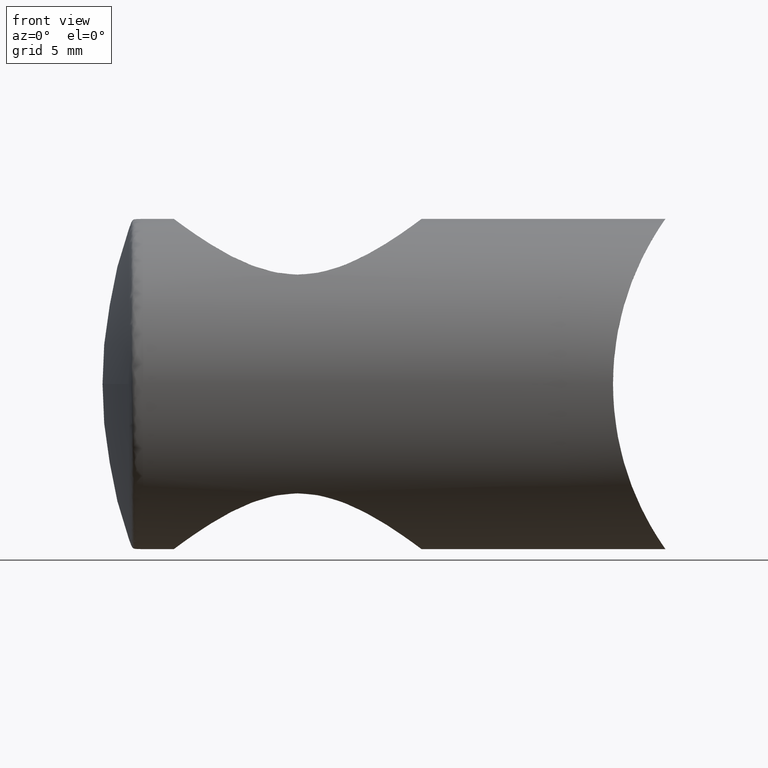
[diagram: clean part render]
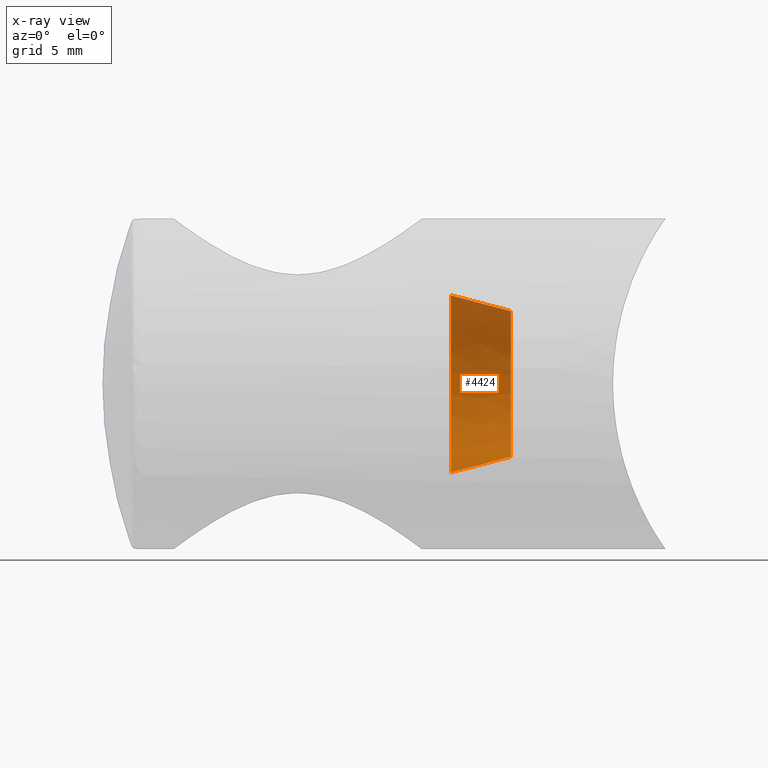
[diagram: x-ray — body ghosted, one internal face saturated and labeled with its STEP entity id]
A machine part, front view, then the same camera in x-ray: the body is ghosted and one INTERNAL B-rep face — a face not visible from any outside direction — is saturated and labeled: STEP entity #4424.
In plain terms, the highlighted conical surface has half-angle 14.708 deg.
Its self-contained STEP definition (entity closure, byte-faithful):
#190 = VERTEX_POINT ( 'NONE', #4262 ) ;
#282 = ORIENTED_EDGE ( 'NONE', *, *, #1530, .T. ) ;
#476 = CARTESIAN_POINT ( 'NONE',  ( -17.58848920863309600, 0.0000000000000000000, 0.0000000000000000000 ) ) ;
#775 = CIRCLE ( 'NONE', #3757, 5.899999999999997700 ) ;
#877 = DIRECTION ( 'NONE',  ( 1.000000000000000000, -0.0000000000000000000, -0.0000000000000000000 ) ) ;
#904 = LINE ( 'NONE', #4533, #4953 ) ;
#949 = ORIENTED_EDGE ( 'NONE', *, *, #2144, .F. ) ;
#975 = CIRCLE ( 'NONE', #4078, 4.849999999999997900 ) ;
#1266 = EDGE_LOOP ( 'NONE', ( #5252, #282, #2546, #949 ) ) ;
#1305 = DIRECTION ( 'NONE',  ( 0.0000000000000000000, 0.0000000000000000000, -1.000000000000000000 ) ) ;
#1338 = CARTESIAN_POINT ( 'NONE',  ( -13.58848920863309600, 5.939536975864660000E-016, -4.849999999999997900 ) ) ;
#1530 = EDGE_CURVE ( 'NONE', #3002, #4100, #4541, .T. ) ;
#1637 = EDGE_CURVE ( 'NONE', #4100, #4276, #775, .T. ) ;
#2144 = EDGE_CURVE ( 'NONE', #190, #4276, #904, .T. ) ;
#2269 = AXIS2_PLACEMENT_3D ( 'NONE', #2450, #5428, #4551 ) ;
#2450 = CARTESIAN_POINT ( 'NONE',  ( -13.58848920863309600, 0.0000000000000000000, 0.0000000000000000000 ) ) ;
#2546 = ORIENTED_EDGE ( 'NONE', *, *, #1637, .T. ) ;
#3002 = VERTEX_POINT ( 'NONE', #3223 ) ;
#3095 = CARTESIAN_POINT ( 'NONE',  ( -17.58848920863309600, 0.0000000000000000000, -5.899999999999997700 ) ) ;
#3112 = DIRECTION ( 'NONE',  ( 1.000000000000000000, -0.0000000000000000000, -0.0000000000000000000 ) ) ;
#3139 = VECTOR ( 'NONE', #5124, 1000.000000000000100 ) ;
#3147 = DIRECTION ( 'NONE',  ( 0.0000000000000000000, 0.0000000000000000000, -1.000000000000000000 ) ) ;
#3223 = CARTESIAN_POINT ( 'NONE',  ( -13.58848920863309600, 6.582476545417020100E-016, -4.849999999999997900 ) ) ;
#3757 = AXIS2_PLACEMENT_3D ( 'NONE', #476, #877, #1305 ) ;
#4078 = AXIS2_PLACEMENT_3D ( 'NONE', #5266, #3112, #3147 ) ;
#4100 = VERTEX_POINT ( 'NONE', #3095 ) ;
#4262 = CARTESIAN_POINT ( 'NONE',  ( -13.58848920863309600, 0.0000000000000000000, 4.849999999999997900 ) ) ;
#4276 = VERTEX_POINT ( 'NONE', #4302 ) ;
#4302 = CARTESIAN_POINT ( 'NONE',  ( -17.58848920863309600, 7.225416114969382200E-016, 5.899999999999997700 ) ) ;
#4303 = FACE_OUTER_BOUND ( 'NONE', #1266, .T. ) ;
#4313 = EDGE_CURVE ( 'NONE', #3002, #190, #975, .T. ) ;
#4424 = ADVANCED_FACE ( 'NONE', ( #4303 ), #5284, .T. ) ;
#4533 = CARTESIAN_POINT ( 'NONE',  ( -13.58848920863309600, 0.0000000000000000000, 4.849999999999997900 ) ) ;
#4541 = LINE ( 'NONE', #1338, #3139 ) ;
#4551 = DIRECTION ( 'NONE',  ( 0.0000000000000000000, 0.0000000000000000000, 1.000000000000000000 ) ) ;
#4897 = DIRECTION ( 'NONE',  ( -0.9672309653794339800, 0.0000000000000000000, 0.2538981284121015800 ) ) ;
#4953 = VECTOR ( 'NONE', #4897, 1000.000000000000100 ) ;
#5124 = DIRECTION ( 'NONE',  ( -0.9672309653794339800, 3.109355302693838800E-017, -0.2538981284121015800 ) ) ;
#5252 = ORIENTED_EDGE ( 'NONE', *, *, #4313, .F. ) ;
#5266 = CARTESIAN_POINT ( 'NONE',  ( -13.58848920863309600, 0.0000000000000000000, 0.0000000000000000000 ) ) ;
#5284 = CONICAL_SURFACE ( 'NONE', #2269, 4.849999999999997900, 0.2567083304333858100 ) ;
#5428 = DIRECTION ( 'NONE',  ( -1.000000000000000000, 0.0000000000000000000, 0.0000000000000000000 ) ) ;